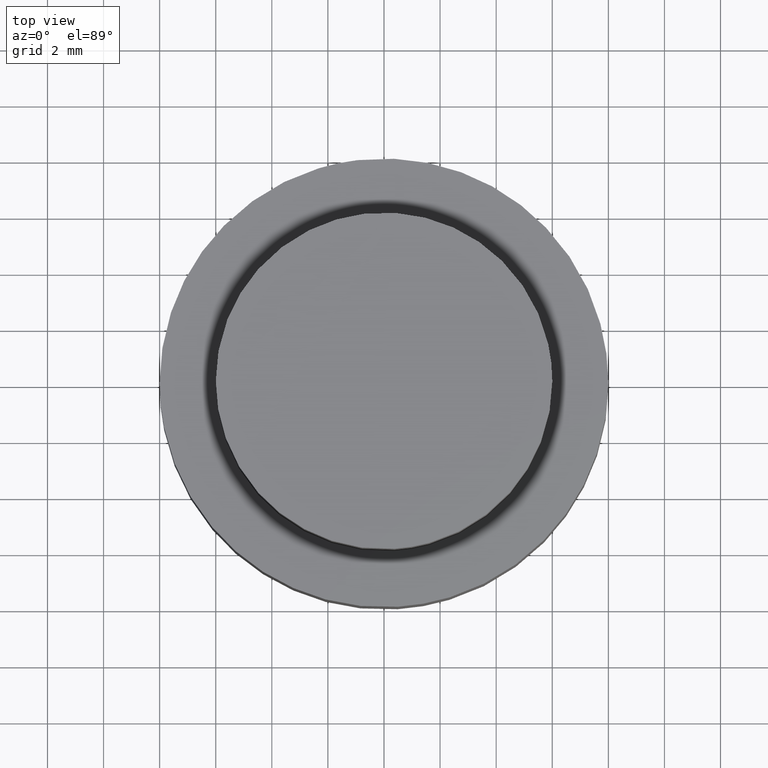
[diagram: clean part render]
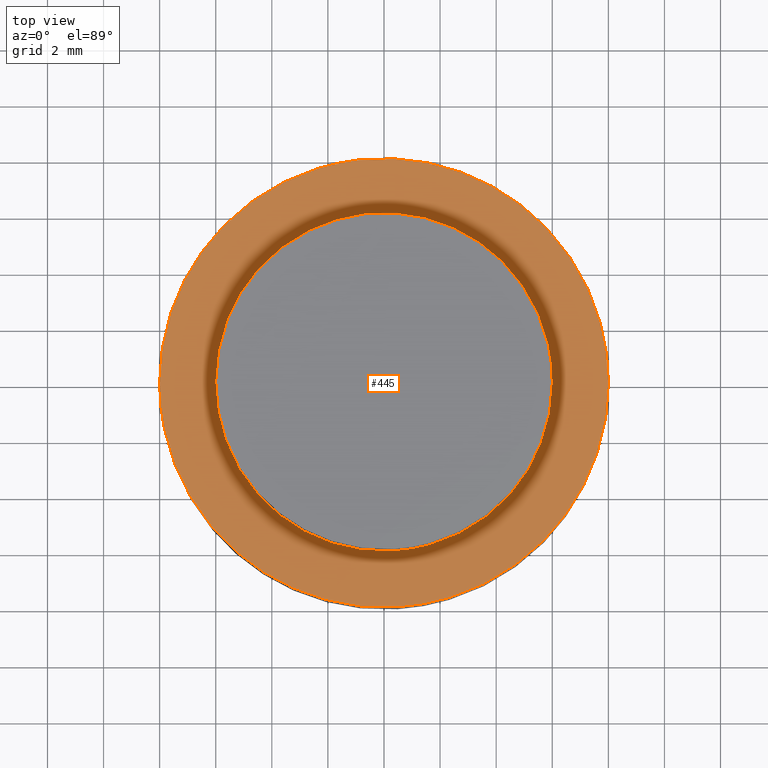
[diagram: same view with one face highlighted and labeled with its STEP entity id]
A machine part, top view. The second image highlights one B-rep face of the part: STEP entity #445.
In plain terms, the highlighted face is a freeform B-spline surface patch.
Its self-contained STEP definition (entity closure, byte-faithful):
#100=CARTESIAN_POINT('',(0.366286099267417,-5.988809104776754,9.0));
#101=VERTEX_POINT('',#100);
#107=CARTESIAN_POINT('',(6.0,0.0,9.0));
#108=VERTEX_POINT('',#107);
#109=CARTESIAN_POINT('',(6.0,0.0,9.0));
#110=CARTESIAN_POINT('',(6.000000000000001,-5.644241252809525,9.000000000000002));
#111=CARTESIAN_POINT('',(0.366286099267417,-5.988809104776754,9.0));
#119=(BOUNDED_CURVE()B_SPLINE_CURVE(2,(#109,#110,#111),.UNSPECIFIED.,.F.,.U.)B_SPLINE_CURVE_WITH_KNOTS((3,3),(0.500000000000000,0.739333110273986),.UNSPECIFIED.)CURVE()GEOMETRIC_REPRESENTATION_ITEM()RATIONAL_B_SPLINE_CURVE((1.0,0.719603819852869,0.976072358934200))REPRESENTATION_ITEM(''));
#120=EDGE_CURVE('',#108,#101,#119,.T.);
#122=CARTESIAN_POINT('',(-0.708199922886695,5.958057810158673,9.0));
#123=VERTEX_POINT('',#122);
#124=CARTESIAN_POINT('',(-0.708199922886695,5.958057810158673,9.0));
#125=CARTESIAN_POINT('',(-0.355341946391267,6.000000000000001,9.000000000000002));
#126=CARTESIAN_POINT('',(0.0,6.0,9.0));
#127=CARTESIAN_POINT('',(6.0,6.0,9.000000000000002));
#128=CARTESIAN_POINT('',(6.0,0.0,9.0));
#136=(BOUNDED_CURVE()B_SPLINE_CURVE(2,(#124,#125,#126,#127,#128),.UNSPECIFIED.,.F.,.U.)B_SPLINE_CURVE_WITH_KNOTS((3,2,3),(0.229562629101929,0.250000000000000,0.500000000000000),.UNSPECIFIED.)CURVE()GEOMETRIC_REPRESENTATION_ITEM()RATIONAL_B_SPLINE_CURVE((0.956027059143597,0.976056130614318,1.0,0.707106781186548,1.0))REPRESENTATION_ITEM(''));
#137=EDGE_CURVE('',#123,#108,#136,.T.);
#181=CARTESIAN_POINT('',(-6.0,0.0,9.0));
#182=VERTEX_POINT('',#181);
#183=CARTESIAN_POINT('',(-6.0,0.0,9.0));
#184=CARTESIAN_POINT('',(-6.000000000000001,5.329052096226471,9.000000000000002));
#185=CARTESIAN_POINT('',(-0.708199922886695,5.958057810158673,9.0));
#193=(BOUNDED_CURVE()B_SPLINE_CURVE(2,(#183,#184,#185),.UNSPECIFIED.,.F.,.U.)B_SPLINE_CURVE_WITH_KNOTS((3,3),(0.0,0.229562629101929),.UNSPECIFIED.)CURVE()GEOMETRIC_REPRESENTATION_ITEM()RATIONAL_B_SPLINE_CURVE((1.0,0.731050650572230,0.956027059143597))REPRESENTATION_ITEM(''));
#194=EDGE_CURVE('',#182,#123,#193,.T.);
#196=CARTESIAN_POINT('',(0.366286099267417,-5.988809104776754,9.0));
#197=CARTESIAN_POINT('',(0.183314003617696,-6.0,9.0));
#198=CARTESIAN_POINT('',(0.0,-6.0,9.0));
#199=CARTESIAN_POINT('',(-6.0,-6.0,9.000000000000002));
#200=CARTESIAN_POINT('',(-6.0,0.0,9.0));
#208=(BOUNDED_CURVE()B_SPLINE_CURVE(2,(#196,#197,#198,#199,#200),.UNSPECIFIED.,.F.,.U.)B_SPLINE_CURVE_WITH_KNOTS((3,2,3),(0.739333110273986,0.750000000000000,1.0),.UNSPECIFIED.)CURVE()GEOMETRIC_REPRESENTATION_ITEM()RATIONAL_B_SPLINE_CURVE((0.976072358934200,0.987502961333678,1.0,0.707106781186548,1.0))REPRESENTATION_ITEM(''));
#209=EDGE_CURVE('',#101,#182,#208,.T.);
#252=CARTESIAN_POINT('',(-0.944268818896609,7.944076802831477,8.999999999999961));
#253=VERTEX_POINT('',#252);
#254=CARTESIAN_POINT('',(8.0,0.0,9.0));
#255=VERTEX_POINT('',#254);
#256=CARTESIAN_POINT('',(-0.944268818896609,7.944076802831477,8.999999999999961));
#257=CARTESIAN_POINT('',(-0.473790401851614,8.0,9.0));
#258=CARTESIAN_POINT('',(0.0,8.0,9.0));
#259=CARTESIAN_POINT('',(8.0,8.0,9.000000000000002));
#260=CARTESIAN_POINT('',(8.0,0.0,9.0));
#268=(BOUNDED_CURVE()B_SPLINE_CURVE(2,(#256,#257,#258,#259,#260),.UNSPECIFIED.,.F.,.U.)B_SPLINE_CURVE_WITH_KNOTS((3,2,3),(0.229562581104482,0.250000000000000,0.500000000000000),.UNSPECIFIED.)CURVE()GEOMETRIC_REPRESENTATION_ITEM()RATIONAL_B_SPLINE_CURVE((0.956026965066519,0.976056074381811,1.0,0.707106781186548,1.0))REPRESENTATION_ITEM(''));
#269=EDGE_CURVE('',#253,#255,#268,.T.);
#271=CARTESIAN_POINT('',(0.488385459123709,-7.985078552835898,8.999999999999979));
#272=VERTEX_POINT('',#271);
#273=CARTESIAN_POINT('',(8.0,0.0,9.0));
#274=CARTESIAN_POINT('',(8.0,-7.525651232509167,9.0));
#275=CARTESIAN_POINT('',(0.488385459123709,-7.985078552835898,8.999999999999979));
#283=(BOUNDED_CURVE()B_SPLINE_CURVE(2,(#273,#274,#275),.UNSPECIFIED.,.F.,.U.)B_SPLINE_CURVE_WITH_KNOTS((3,3),(0.500000000000000,0.739333023969015),.UNSPECIFIED.)CURVE()GEOMETRIC_REPRESENTATION_ITEM()RATIONAL_B_SPLINE_CURVE((1.0,0.719603920965432,0.976072173966049))REPRESENTATION_ITEM(''));
#284=EDGE_CURVE('',#255,#272,#283,.T.);
#351=CARTESIAN_POINT('',(-8.0,0.0,9.0));
#352=VERTEX_POINT('',#351);
#353=CARTESIAN_POINT('',(-8.0,0.0,9.0));
#354=CARTESIAN_POINT('',(-8.0,7.105400762807472,9.0));
#355=CARTESIAN_POINT('',(-0.944268818896609,7.944076802831477,8.999999999999961));
#363=(BOUNDED_CURVE()B_SPLINE_CURVE(2,(#353,#354,#355),.UNSPECIFIED.,.F.,.U.)B_SPLINE_CURVE_WITH_KNOTS((3,3),(0.0,0.229562581104482),.UNSPECIFIED.)CURVE()GEOMETRIC_REPRESENTATION_ITEM()RATIONAL_B_SPLINE_CURVE((1.0,0.731050706804736,0.956026965066519))REPRESENTATION_ITEM(''));
#364=EDGE_CURVE('',#352,#253,#363,.T.);
#398=CARTESIAN_POINT('',(0.488385459123709,-7.985078552835898,8.999999999999979));
#399=CARTESIAN_POINT('',(0.244420674089390,-8.0,9.0));
#400=CARTESIAN_POINT('',(0.0,-8.0,9.0));
#401=CARTESIAN_POINT('',(-8.0,-8.0,9.000000000000002));
#402=CARTESIAN_POINT('',(-8.0,0.0,9.0));
#410=(BOUNDED_CURVE()B_SPLINE_CURVE(2,(#398,#399,#400,#401,#402),.UNSPECIFIED.,.F.,.U.)B_SPLINE_CURVE_WITH_KNOTS((3,2,3),(0.739333023969015,0.750000000000000,1.0),.UNSPECIFIED.)CURVE()GEOMETRIC_REPRESENTATION_ITEM()RATIONAL_B_SPLINE_CURVE((0.976072173966049,0.987502860221115,1.0,0.707106781186548,1.0))REPRESENTATION_ITEM(''));
#411=EDGE_CURVE('',#272,#352,#410,.T.);
#428=CARTESIAN_POINT('',(-8.799199968988896,-8.799005706689359,9.0));
#429=CARTESIAN_POINT('',(8.799200398142338,-8.799005706689359,9.0));
#430=CARTESIAN_POINT('',(-8.799199968988896,8.799054487130642,9.0));
#431=CARTESIAN_POINT('',(8.799200398142338,8.799054487130642,9.0));
#432=B_SPLINE_SURFACE_WITH_KNOTS('',1,1,((#428,#430),(#429,#431)),.UNSPECIFIED.,.F.,.F.,.U.,(2,2),(2,2),(0.0,17.598400367131230),(0.0,17.598060193820000),.UNSPECIFIED.);
#433=ORIENTED_EDGE('',*,*,#411,.F.);
#434=ORIENTED_EDGE('',*,*,#284,.F.);
#435=ORIENTED_EDGE('',*,*,#269,.F.);
#436=ORIENTED_EDGE('',*,*,#364,.F.);
#437=EDGE_LOOP('',(#433,#434,#435,#436));
#438=FACE_OUTER_BOUND('',#437,.T.);
#439=ORIENTED_EDGE('',*,*,#120,.T.);
#440=ORIENTED_EDGE('',*,*,#209,.T.);
#441=ORIENTED_EDGE('',*,*,#194,.T.);
#442=ORIENTED_EDGE('',*,*,#137,.T.);
#443=EDGE_LOOP('',(#439,#440,#441,#442));
#444=FACE_BOUND('',#443,.T.);
#445=ADVANCED_FACE('',(#438,#444),#432,.T.);